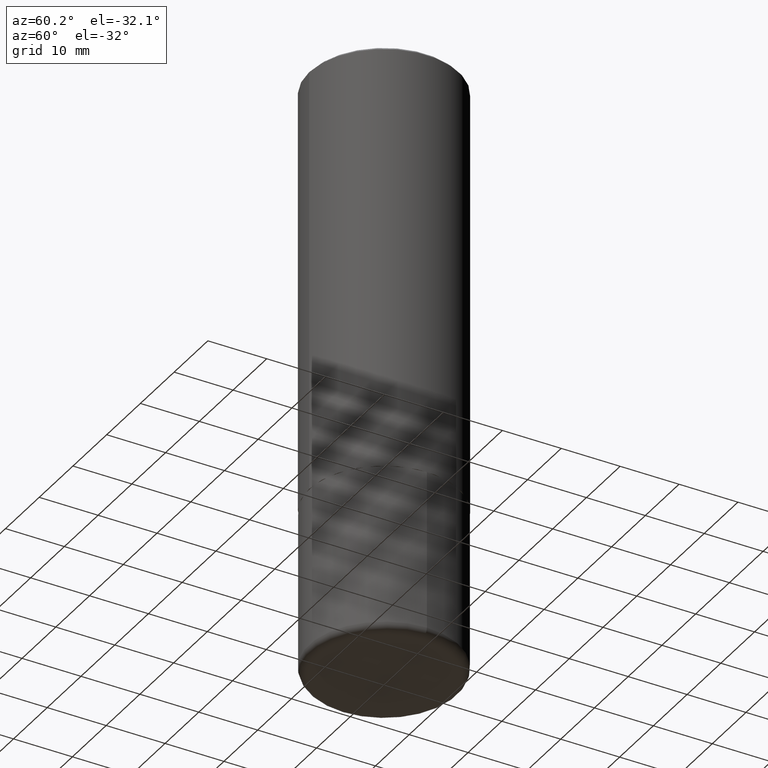
[diagram: clean part render]
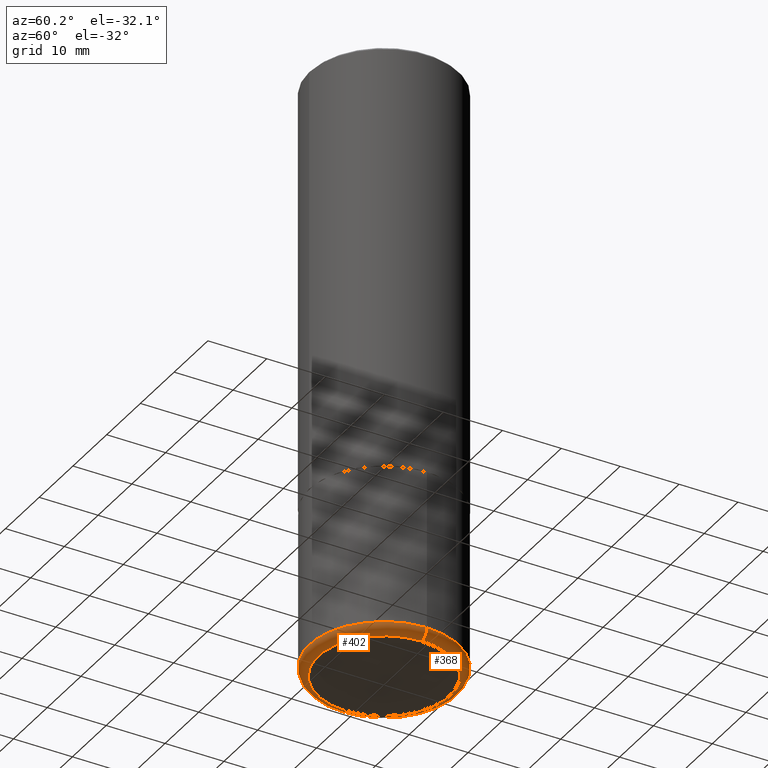
[diagram: same view with one multi-face feature highlighted, each face labeled with its STEP entity id]
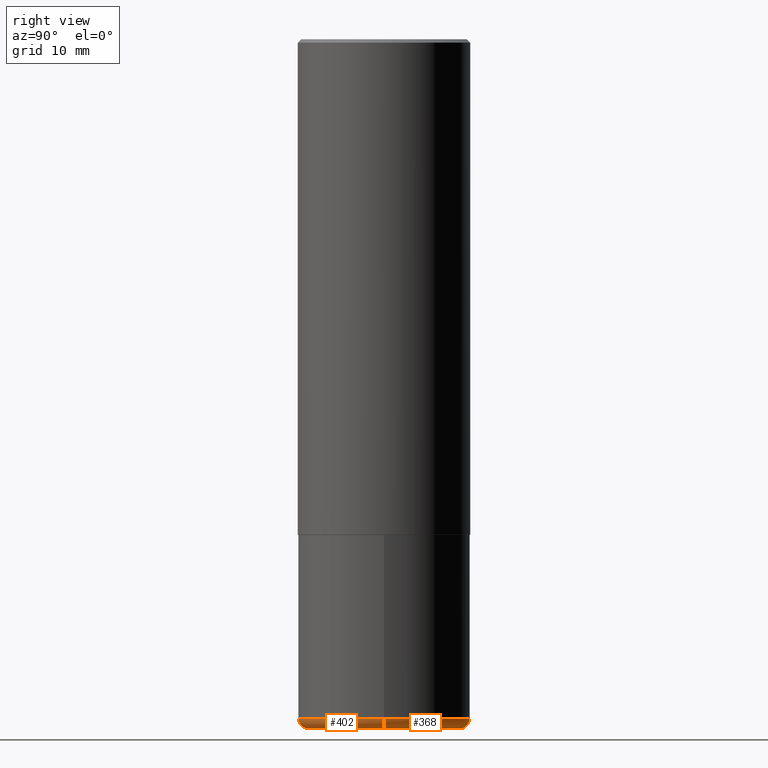
[diagram: same view with one multi-face feature highlighted, each face labeled with its STEP entity id]
A machine part, auxiliary view. The highlighted faces form ONE feature: a constant-radius fillet chain: 2 tangent blend faces with common blend radius 1.524 mm. The faces share edges in the B-rep.
A second angle (right view) of the same feature is appended — it is thin or edge-on in the first view.
Their STEP definitions:
[1] entity #368 (Torus):
#46 = CARTESIAN_POINT ( 'NONE',  ( -0.4400000000000000022, -1.052163005713481670E-14, -4.000000000000000888 ) ) ;
#55 = DIRECTION ( 'NONE',  ( 1.000000000000000000, -6.982962677686266711E-15, 0.000000000000000000 ) ) ;
#74 = DIRECTION ( 'NONE',  ( -1.000000000000000000, 7.105427357600993970E-15, 0.000000000000000000 ) ) ;
#85 = EDGE_CURVE ( 'NONE', #218, #388, #417, .T. ) ;
#87 = EDGE_CURVE ( 'NONE', #372, #388, #204, .T. ) ;
#88 = VERTEX_POINT ( 'NONE', #300 ) ;
#111 = CARTESIAN_POINT ( 'NONE',  ( 9.635147096369438236E-29, -1.375643647504199401E-14, -3.939999999999999947 ) ) ;
#114 = CARTESIAN_POINT ( 'NONE',  ( 9.781875224740547508E-29, -1.396592535537258391E-14, -4.000000000000000888 ) ) ;
#120 = ORIENTED_EDGE ( 'NONE', *, *, #129, .F. ) ;
#127 = TOROIDAL_SURFACE ( 'NONE', #273, 0.4400000000000000022, 0.06000000000000024758 ) ;
#129 = EDGE_CURVE ( 'NONE', #88, #372, #305, .T. ) ;
#145 = CARTESIAN_POINT ( 'NONE',  ( 9.635147096369438236E-29, -1.375643647504199401E-14, -3.939999999999999947 ) ) ;
#172 = DIRECTION ( 'NONE',  ( 1.000000000000000000, -6.982962677686265133E-15, 0.000000000000000000 ) ) ;
#183 = ORIENTED_EDGE ( 'NONE', *, *, #85, .T. ) ;
#204 = CIRCLE ( 'NONE', #405, 0.5000000000000001110 ) ;
#216 = AXIS2_PLACEMENT_3D ( 'NONE', #240, #365, #74 ) ;
#218 = VERTEX_POINT ( 'NONE', #46 ) ;
#234 = DIRECTION ( 'NONE',  ( -2.445468806185136597E-29, 3.491481338843145583E-15, 1.000000000000000000 ) ) ;
#240 = CARTESIAN_POINT ( 'NONE',  ( -0.4400000000000000022, -1.063004843769755357E-14, -3.939999999999999947 ) ) ;
#242 = DIRECTION ( 'NONE',  ( -2.445468806185136597E-29, 3.491481338843145583E-15, 1.000000000000000000 ) ) ;
#247 = AXIS2_PLACEMENT_3D ( 'NONE', #114, #242, #55 ) ;
#249 = DIRECTION ( 'NONE',  ( -2.445468806185136597E-29, 3.491481338843145583E-15, 1.000000000000000000 ) ) ;
#251 = FACE_OUTER_BOUND ( 'NONE', #340, .T. ) ;
#269 = CARTESIAN_POINT ( 'NONE',  ( 0.5000000000000001110, -1.724791781388512737E-14, -3.939999999999999947 ) ) ;
#273 = AXIS2_PLACEMENT_3D ( 'NONE', #145, #249, #317 ) ;
#300 = CARTESIAN_POINT ( 'NONE',  ( 0.4400000000000000022, -1.703842893355454063E-14, -4.000000000000000888 ) ) ;
#305 = CIRCLE ( 'NONE', #358, 0.06000000000000024758 ) ;
#317 = DIRECTION ( 'NONE',  ( 1.000000000000000000, -6.982962677686266711E-15, 4.883557194083113462E-29 ) ) ;
#325 = CIRCLE ( 'NONE', #247, 0.4400000000000000022 ) ;
#326 = DIRECTION ( 'NONE',  ( -6.982962677686266711E-15, -1.000000000000000000, 3.491481338843145583E-15 ) ) ;
#332 = DIRECTION ( 'NONE',  ( 1.000000000000000000, -6.982962677686271444E-15, 0.000000000000000000 ) ) ;
#336 = CARTESIAN_POINT ( 'NONE',  ( -0.5000000000000001110, -1.020372279624149151E-14, -3.939999999999999947 ) ) ;
#340 = EDGE_LOOP ( 'NONE', ( #349, #183, #406, #120 ) ) ;
#349 = ORIENTED_EDGE ( 'NONE', *, *, #396, .T. ) ;
#358 = AXIS2_PLACEMENT_3D ( 'NONE', #398, #326, #332 ) ;
#365 = DIRECTION ( 'NONE',  ( 7.105427357601001859E-15, 1.000000000000000000, -3.491481338843145583E-15 ) ) ;
#368 = ADVANCED_FACE ( 'NONE', ( #251 ), #127, .T. ) ;
#372 = VERTEX_POINT ( 'NONE', #269 ) ;
#388 = VERTEX_POINT ( 'NONE', #336 ) ;
#396 = EDGE_CURVE ( 'NONE', #88, #218, #325, .T. ) ;
#398 = CARTESIAN_POINT ( 'NONE',  ( 0.4400000000000000022, -1.682894005322395074E-14, -3.939999999999999947 ) ) ;
#405 = AXIS2_PLACEMENT_3D ( 'NONE', #111, #234, #172 ) ;
#406 = ORIENTED_EDGE ( 'NONE', *, *, #87, .F. ) ;
#417 = CIRCLE ( 'NONE', #216, 0.06000000000000024758 ) ;
[2] entity #402 (Torus):
#11 = CARTESIAN_POINT ( 'NONE',  ( 9.781875224740547508E-29, -1.396592535537258391E-14, -4.000000000000000888 ) ) ;
#13 = DIRECTION ( 'NONE',  ( 1.000000000000000000, -6.982962677686266711E-15, 0.000000000000000000 ) ) ;
#15 = CARTESIAN_POINT ( 'NONE',  ( 9.635147096369438236E-29, -1.375643647504199401E-14, -3.939999999999999947 ) ) ;
#21 = DIRECTION ( 'NONE',  ( -2.445468806185136597E-29, 3.491481338843145583E-15, 1.000000000000000000 ) ) ;
#28 = CIRCLE ( 'NONE', #196, 0.4400000000000000022 ) ;
#46 = CARTESIAN_POINT ( 'NONE',  ( -0.4400000000000000022, -1.052163005713481670E-14, -4.000000000000000888 ) ) ;
#74 = DIRECTION ( 'NONE',  ( -1.000000000000000000, 7.105427357600993970E-15, 0.000000000000000000 ) ) ;
#77 = EDGE_CURVE ( 'NONE', #388, #372, #96, .T. ) ;
#85 = EDGE_CURVE ( 'NONE', #218, #388, #417, .T. ) ;
#88 = VERTEX_POINT ( 'NONE', #300 ) ;
#96 = CIRCLE ( 'NONE', #350, 0.5000000000000001110 ) ;
#98 = EDGE_LOOP ( 'NONE', ( #256, #152, #146, #343 ) ) ;
#129 = EDGE_CURVE ( 'NONE', #88, #372, #305, .T. ) ;
#139 = DIRECTION ( 'NONE',  ( -2.445468806185136597E-29, 3.491481338843145583E-15, 1.000000000000000000 ) ) ;
#144 = AXIS2_PLACEMENT_3D ( 'NONE', #15, #21, #404 ) ;
#146 = ORIENTED_EDGE ( 'NONE', *, *, #129, .T. ) ;
#147 = FACE_OUTER_BOUND ( 'NONE', #98, .T. ) ;
#152 = ORIENTED_EDGE ( 'NONE', *, *, #179, .T. ) ;
#179 = EDGE_CURVE ( 'NONE', #218, #88, #28, .T. ) ;
#196 = AXIS2_PLACEMENT_3D ( 'NONE', #11, #295, #13 ) ;
#201 = DIRECTION ( 'NONE',  ( 1.000000000000000000, -6.982962677686265133E-15, 0.000000000000000000 ) ) ;
#216 = AXIS2_PLACEMENT_3D ( 'NONE', #240, #365, #74 ) ;
#218 = VERTEX_POINT ( 'NONE', #46 ) ;
#240 = CARTESIAN_POINT ( 'NONE',  ( -0.4400000000000000022, -1.063004843769755357E-14, -3.939999999999999947 ) ) ;
#256 = ORIENTED_EDGE ( 'NONE', *, *, #85, .F. ) ;
#269 = CARTESIAN_POINT ( 'NONE',  ( 0.5000000000000001110, -1.724791781388512737E-14, -3.939999999999999947 ) ) ;
#295 = DIRECTION ( 'NONE',  ( -2.445468806185136597E-29, 3.491481338843145583E-15, 1.000000000000000000 ) ) ;
#300 = CARTESIAN_POINT ( 'NONE',  ( 0.4400000000000000022, -1.703842893355454063E-14, -4.000000000000000888 ) ) ;
#301 = CARTESIAN_POINT ( 'NONE',  ( 9.635147096369438236E-29, -1.375643647504199401E-14, -3.939999999999999947 ) ) ;
#305 = CIRCLE ( 'NONE', #358, 0.06000000000000024758 ) ;
#326 = DIRECTION ( 'NONE',  ( -6.982962677686266711E-15, -1.000000000000000000, 3.491481338843145583E-15 ) ) ;
#332 = DIRECTION ( 'NONE',  ( 1.000000000000000000, -6.982962677686271444E-15, 0.000000000000000000 ) ) ;
#336 = CARTESIAN_POINT ( 'NONE',  ( -0.5000000000000001110, -1.020372279624149151E-14, -3.939999999999999947 ) ) ;
#343 = ORIENTED_EDGE ( 'NONE', *, *, #77, .F. ) ;
#350 = AXIS2_PLACEMENT_3D ( 'NONE', #301, #139, #201 ) ;
#358 = AXIS2_PLACEMENT_3D ( 'NONE', #398, #326, #332 ) ;
#365 = DIRECTION ( 'NONE',  ( 7.105427357601001859E-15, 1.000000000000000000, -3.491481338843145583E-15 ) ) ;
#371 = TOROIDAL_SURFACE ( 'NONE', #144, 0.4400000000000000022, 0.06000000000000024758 ) ;
#372 = VERTEX_POINT ( 'NONE', #269 ) ;
#388 = VERTEX_POINT ( 'NONE', #336 ) ;
#398 = CARTESIAN_POINT ( 'NONE',  ( 0.4400000000000000022, -1.682894005322395074E-14, -3.939999999999999947 ) ) ;
#402 = ADVANCED_FACE ( 'NONE', ( #147 ), #371, .T. ) ;
#404 = DIRECTION ( 'NONE',  ( 1.000000000000000000, -6.982962677686266711E-15, 4.883557194083113462E-29 ) ) ;
#417 = CIRCLE ( 'NONE', #216, 0.06000000000000024758 ) ;